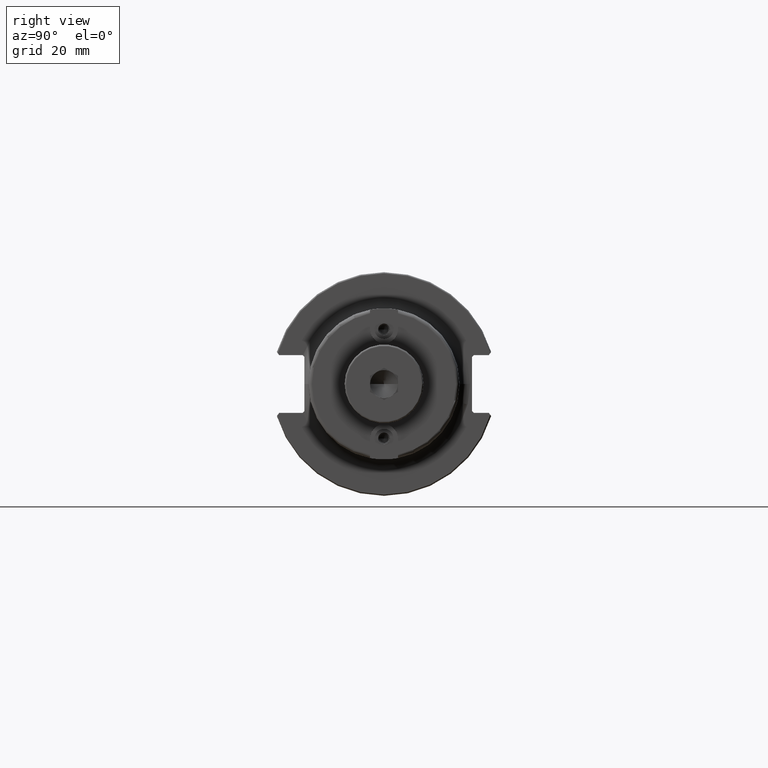
[diagram: clean part render]
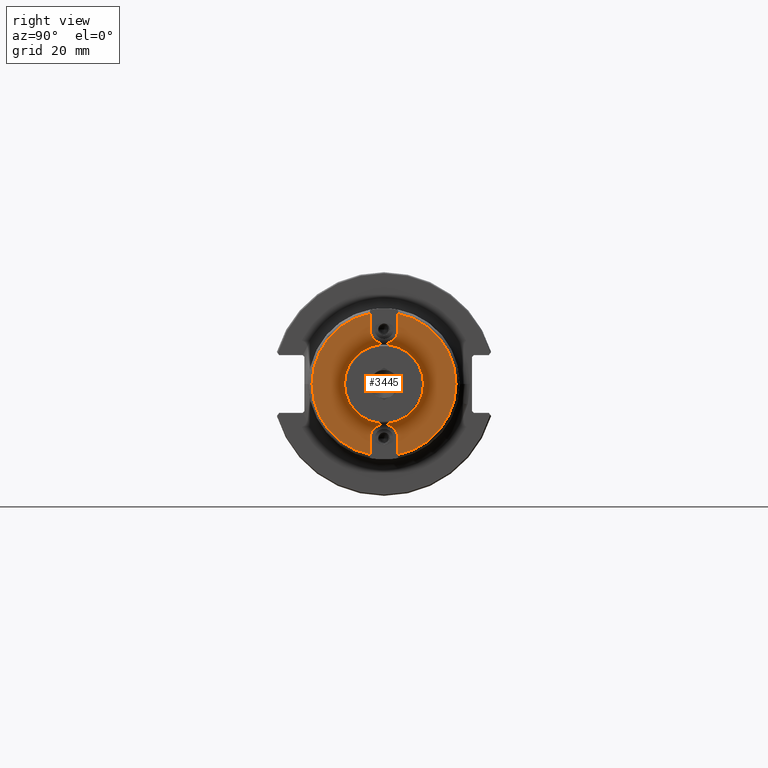
[diagram: same view with one face highlighted and labeled with its STEP entity id]
A machine part, right view. The second image highlights one B-rep face of the part: STEP entity #3445.
In plain terms, the highlighted planar face has unit normal (1, 0, 0).
Its self-contained STEP definition (entity closure, byte-faithful):
#759=CARTESIAN_POINT('',(3.5E0,0.E0,0.E0));
#760=DIRECTION('',(1.E0,0.E0,0.E0));
#761=DIRECTION('',(0.E0,-1.925465838509E-1,9.812878339444E-1));
#762=AXIS2_PLACEMENT_3D('',#759,#760,#761);
#764=CARTESIAN_POINT('',(3.5E0,0.E0,0.E0));
#765=DIRECTION('',(1.E0,0.E0,0.E0));
#766=DIRECTION('',(0.E0,1.E0,0.E0));
#767=AXIS2_PLACEMENT_3D('',#764,#765,#766);
#769=CARTESIAN_POINT('',(3.5E0,0.E0,0.E0));
#770=DIRECTION('',(1.E0,0.E0,0.E0));
#771=DIRECTION('',(0.E0,-1.E0,0.E0));
#772=AXIS2_PLACEMENT_3D('',#769,#770,#771);
#774=DIRECTION('',(0.E0,0.E0,-1.E0));
#775=VECTOR('',#774,1.849367063253E-1);
#776=CARTESIAN_POINT('',(3.5E0,-1.55E-1,7.899367063253E-1));
#777=LINE('',#776,#775);
#778=CARTESIAN_POINT('',(3.5E0,0.E0,6.05E-1));
#779=DIRECTION('',(1.E0,0.E0,0.E0));
#780=DIRECTION('',(0.E0,-1.E0,0.E0));
#781=AXIS2_PLACEMENT_3D('',#778,#779,#780);
#783=DIRECTION('',(0.E0,0.E0,-1.E0));
#784=VECTOR('',#783,1.849367063253E-1);
#785=CARTESIAN_POINT('',(3.5E0,1.55E-1,7.899367063253E-1));
#786=LINE('',#785,#784);
#787=DIRECTION('',(0.E0,0.E0,1.E0));
#788=VECTOR('',#787,1.849367063253E-1);
#789=CARTESIAN_POINT('',(3.5E0,1.55E-1,-7.899367063253E-1));
#790=LINE('',#789,#788);
#791=CARTESIAN_POINT('',(3.5E0,0.E0,-6.05E-1));
#792=DIRECTION('',(1.E0,0.E0,0.E0));
#793=DIRECTION('',(0.E0,1.E0,0.E0));
#794=AXIS2_PLACEMENT_3D('',#791,#792,#793);
#796=DIRECTION('',(0.E0,0.E0,1.E0));
#797=VECTOR('',#796,1.849367063253E-1);
#798=CARTESIAN_POINT('',(3.5E0,-1.55E-1,-7.899367063253E-1));
#799=LINE('',#798,#797);
#1121=CARTESIAN_POINT('',(3.5E0,-1.55E-1,7.899367063253E-1));
#1769=CARTESIAN_POINT('',(3.5E0,0.E0,0.E0));
#1770=DIRECTION('',(1.E0,0.E0,0.E0));
#1771=DIRECTION('',(0.E0,1.925465838509E-1,-9.812878339444E-1));
#1772=AXIS2_PLACEMENT_3D('',#1769,#1770,#1771);
#1781=CARTESIAN_POINT('',(3.5E0,1.55E-1,-7.899367063253E-1));
#1810=CARTESIAN_POINT('',(3.5E0,-1.55E-1,-7.899367063253E-1));
#1867=CARTESIAN_POINT('',(3.5E0,1.55E-1,7.899367063253E-1));
#2496=CARTESIAN_POINT('',(3.5E0,4.340551181102E-1,0.E0));
#2497=CARTESIAN_POINT('',(3.5E0,-4.340551181102E-1,0.E0));
#2498=VERTEX_POINT('',#2496);
#2499=VERTEX_POINT('',#2497);
#2595=CARTESIAN_POINT('',(3.5E0,-1.55E-1,-6.05E-1));
#2596=VERTEX_POINT('',#2595);
#2597=CARTESIAN_POINT('',(3.5E0,1.55E-1,-6.05E-1));
#2598=VERTEX_POINT('',#2597);
#2613=CARTESIAN_POINT('',(3.5E0,1.55E-1,6.05E-1));
#2614=VERTEX_POINT('',#2613);
#2615=CARTESIAN_POINT('',(3.5E0,-1.55E-1,6.05E-1));
#2616=VERTEX_POINT('',#2615);
#2625=VERTEX_POINT('',#1781);
#2626=VERTEX_POINT('',#1867);
#2627=VERTEX_POINT('',#1810);
#2628=VERTEX_POINT('',#1121);
#3417=CARTESIAN_POINT('',(3.5E0,0.E0,0.E0));
#3418=DIRECTION('',(1.E0,0.E0,0.E0));
#3419=DIRECTION('',(0.E0,-1.E0,0.E0));
#3420=AXIS2_PLACEMENT_3D('',#3417,#3418,#3419);
#3421=PLANE('',#3420);
#3422=ORIENTED_EDGE('',*,*,#3405,.F.);
#3424=ORIENTED_EDGE('',*,*,#3423,.T.);
#3426=ORIENTED_EDGE('',*,*,#3425,.T.);
#3428=ORIENTED_EDGE('',*,*,#3427,.F.);
#3430=ORIENTED_EDGE('',*,*,#3429,.F.);
#3432=ORIENTED_EDGE('',*,*,#3431,.T.);
#3434=ORIENTED_EDGE('',*,*,#3433,.T.);
#3436=ORIENTED_EDGE('',*,*,#3435,.F.);
#3437=EDGE_LOOP('',(#3422,#3424,#3426,#3428,#3430,#3432,#3434,#3436));
#3438=FACE_OUTER_BOUND('',#3437,.F.);
#3440=ORIENTED_EDGE('',*,*,#3439,.T.);
#3442=ORIENTED_EDGE('',*,*,#3441,.T.);
#3443=EDGE_LOOP('',(#3440,#3442));
#3444=FACE_BOUND('',#3443,.F.);
#3445=ADVANCED_FACE('',(#3438,#3444),#3421,.T.);
#763=CIRCLE('',#762,8.05E-1);
#768=CIRCLE('',#767,4.340551181102E-1);
#773=CIRCLE('',#772,4.340551181102E-1);
#782=CIRCLE('',#781,1.55E-1);
#795=CIRCLE('',#794,1.55E-1);
#1773=CIRCLE('',#1772,8.05E-1);
#3405=EDGE_CURVE('',#2628,#2627,#763,.T.);
#3423=EDGE_CURVE('',#2628,#2616,#777,.T.);
#3425=EDGE_CURVE('',#2616,#2614,#782,.T.);
#3427=EDGE_CURVE('',#2626,#2614,#786,.T.);
#3429=EDGE_CURVE('',#2625,#2626,#1773,.T.);
#3431=EDGE_CURVE('',#2625,#2598,#790,.T.);
#3433=EDGE_CURVE('',#2598,#2596,#795,.T.);
#3435=EDGE_CURVE('',#2627,#2596,#799,.T.);
#3439=EDGE_CURVE('',#2498,#2499,#768,.T.);
#3441=EDGE_CURVE('',#2499,#2498,#773,.T.);